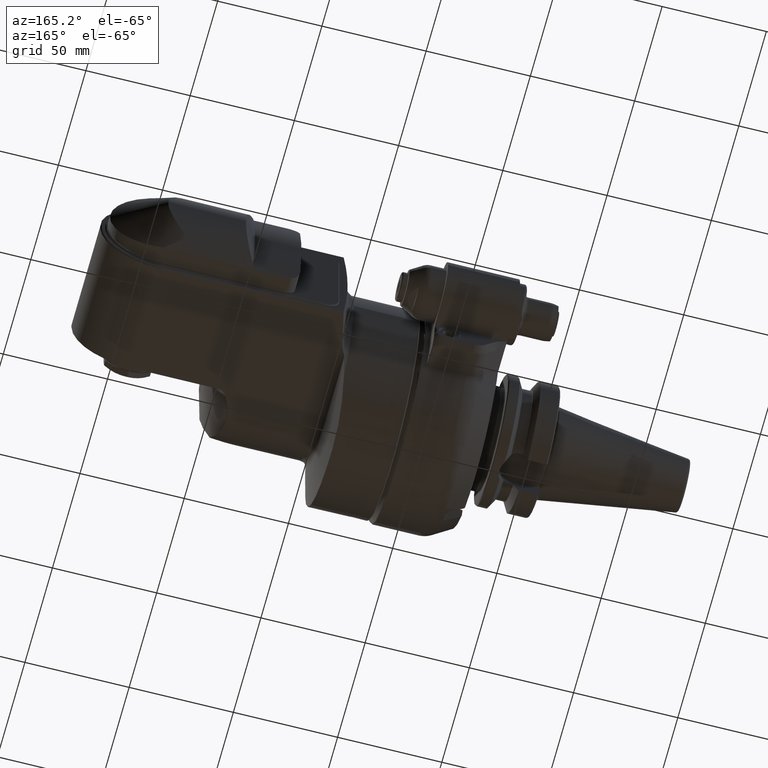
[diagram: clean part render]
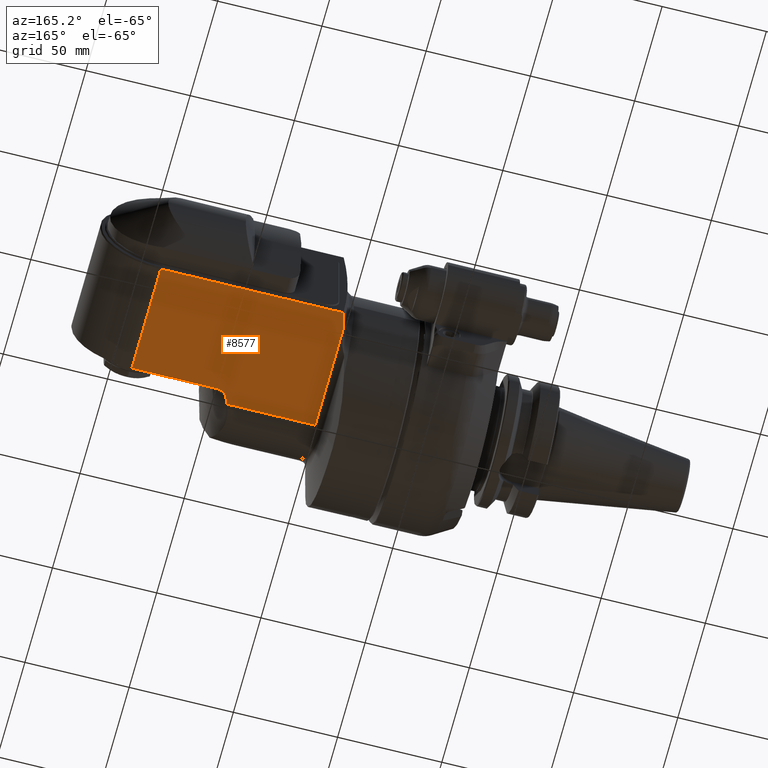
[diagram: same view with one face highlighted and labeled with its STEP entity id]
A machine part, auxiliary view. The second image highlights one B-rep face of the part: STEP entity #8577.
In plain terms, the highlighted planar face has unit normal (0, 0, -1).
Its self-contained STEP definition (entity closure, byte-faithful):
#63=(
BOUNDED_CURVE()
B_SPLINE_CURVE(2,(#15683,#15684,#15685),.UNSPECIFIED.,.F.,.F.)
B_SPLINE_CURVE_WITH_KNOTS((3,3),(31.6407018756519,33.7809985928051),
 .UNSPECIFIED.)
CURVE()
GEOMETRIC_REPRESENTATION_ITEM()
RATIONAL_B_SPLINE_CURVE((1.16255857113127,1.13492545272159,1.10281010088748))
REPRESENTATION_ITEM('')
);
#66=(
BOUNDED_CURVE()
B_SPLINE_CURVE(2,(#15729,#15730,#15731),.UNSPECIFIED.,.F.,.F.)
B_SPLINE_CURVE_WITH_KNOTS((3,3),(4.82928766938057,5.24556707685051),
 .UNSPECIFIED.)
CURVE()
GEOMETRIC_REPRESENTATION_ITEM()
RATIONAL_B_SPLINE_CURVE((1.03701858118079,1.03682333171529,1.03631936417338))
REPRESENTATION_ITEM('')
);
#168=B_SPLINE_CURVE_WITH_KNOTS('',3,(#15712,#15713,#15714,#15715,#15716,
#15717,#15718,#15719,#15720,#15721,#15722,#15723,#15724,#15725,#15726,#15727),
 .UNSPECIFIED.,.F.,.F.,(4,2,2,2,2,2,2,4),(1.49826923300153,1.53043280711697,
1.61136461859275,1.69229643006853,1.79134783866962,1.8903992472707,2.00104239030733,
2.11168553334395),.UNSPECIFIED.);
#598=LINE('',#15701,#1189);
#601=LINE('',#15706,#1192);
#602=LINE('',#15708,#1193);
#603=LINE('',#15710,#1194);
#604=LINE('',#15732,#1195);
#1189=VECTOR('',#11208,10.);
#1192=VECTOR('',#11213,50.4922418065116);
#1193=VECTOR('',#11214,52.5);
#1194=VECTOR('',#11215,40.4589803375);
#1195=VECTOR('',#11216,42.40269030598);
#1969=FACE_OUTER_BOUND('',#2520,.T.);
#2520=EDGE_LOOP('',(#6678,#6679,#6680,#6681,#6682,#6683,#6684,#6685));
#3779=VERTEX_POINT('',#15602);
#3799=VERTEX_POINT('',#15678);
#3800=VERTEX_POINT('',#15682);
#3803=VERTEX_POINT('',#15700);
#3805=VERTEX_POINT('',#15707);
#3806=VERTEX_POINT('',#15709);
#3807=VERTEX_POINT('',#15711);
#3808=VERTEX_POINT('',#15728);
#4841=EDGE_CURVE('',#3799,#3800,#63,.T.);
#4846=EDGE_CURVE('',#3803,#3799,#598,.T.);
#4849=EDGE_CURVE('',#3800,#3779,#601,.T.);
#4850=EDGE_CURVE('',#3805,#3803,#602,.T.);
#4851=EDGE_CURVE('',#3806,#3805,#603,.T.);
#4852=EDGE_CURVE('',#3807,#3806,#168,.T.);
#4853=EDGE_CURVE('',#3807,#3808,#66,.T.);
#4854=EDGE_CURVE('',#3779,#3808,#604,.T.);
#6678=ORIENTED_EDGE('',*,*,#4849,.F.);
#6679=ORIENTED_EDGE('',*,*,#4841,.F.);
#6680=ORIENTED_EDGE('',*,*,#4846,.F.);
#6681=ORIENTED_EDGE('',*,*,#4850,.F.);
#6682=ORIENTED_EDGE('',*,*,#4851,.F.);
#6683=ORIENTED_EDGE('',*,*,#4852,.F.);
#6684=ORIENTED_EDGE('',*,*,#4853,.T.);
#6685=ORIENTED_EDGE('',*,*,#4854,.F.);
#8227=PLANE('',#9401);
#8577=ADVANCED_FACE('',(#1969),#8227,.T.);
#9401=AXIS2_PLACEMENT_3D('',#15705,#11211,#11212);
#11208=DIRECTION('',(-1.,0.,0.));
#11211=DIRECTION('center_axis',(0.,0.,-1.));
#11212=DIRECTION('ref_axis',(0.,1.,0.));
#11213=DIRECTION('',(3.98864109842587E-7,-0.999999999999368,-1.05111995125497E-6));
#11214=DIRECTION('',(0.,1.,0.));
#11215=DIRECTION('',(1.,0.,0.));
#11216=DIRECTION('',(0.999999999999999,-1.247353217578E-8,3.210927516568E-8));
#15602=CARTESIAN_POINT('',(-88.66025403784,0.,-30.));
#15678=CARTESIAN_POINT('',(-86.6621376001117,59.0000000009117,-29.9999999996263));
#15682=CARTESIAN_POINT('',(-88.6602708642723,50.4921914898963,-29.9999516932181));
#15683=CARTESIAN_POINT('Ctrl Pts',(-86.6621376002804,59.000000000952,-30.));
#15684=CARTESIAN_POINT('Ctrl Pts',(-87.7388160616828,54.4921631690506,-30.));
#15685=CARTESIAN_POINT('Ctrl Pts',(-88.6602372876669,50.4921889708177,-30.));
#15700=CARTESIAN_POINT('',(0.999999999998,59.,-30.));
#15701=CARTESIAN_POINT('',(-134.3000012,59.,-30.));
#15705=CARTESIAN_POINT('Origin',(-93.,65.11439776565,-30.));
#15706=CARTESIAN_POINT('',(-88.66027417739,50.49224180648,-29.9999469266));
#15707=CARTESIAN_POINT('',(0.999999999998,6.5,-30.));
#15708=CARTESIAN_POINT('',(0.999999999998,6.5,-30.));
#15709=CARTESIAN_POINT('',(-39.4589803375,6.5,-30.));
#15710=CARTESIAN_POINT('',(-39.4589803375,6.5,-30.));
#15711=CARTESIAN_POINT('',(-44.8540428344694,3.53527614953474,-30.0000000053596));
#15712=CARTESIAN_POINT('Ctrl Pts',(-44.8540428295147,3.53527614759441,-30.));
#15713=CARTESIAN_POINT('Ctrl Pts',(-44.8123974573057,3.64161822527457,-30.));
#15714=CARTESIAN_POINT('Ctrl Pts',(-44.7655773363431,3.74351917789133,-30.));
#15715=CARTESIAN_POINT('Ctrl Pts',(-44.5922500260235,4.07829529141559,-30.));
#15716=CARTESIAN_POINT('Ctrl Pts',(-44.4264723064874,4.32229786159449,-30.));
#15717=CARTESIAN_POINT('Ctrl Pts',(-44.0435369211292,4.76780407145822,-30.));
#15718=CARTESIAN_POINT('Ctrl Pts',(-43.8268543227488,4.96971583580246,-30.));
#15719=CARTESIAN_POINT('Ctrl Pts',(-43.3578282406687,5.34381130191266,-30.));
#15720=CARTESIAN_POINT('Ctrl Pts',(-43.0548954390126,5.54170426895446,-30.));
#15721=CARTESIAN_POINT('Ctrl Pts',(-42.4170058685572,5.87849715763417,-30.));
#15722=CARTESIAN_POINT('Ctrl Pts',(-42.0822325212658,6.01774436719797,-30.));
#15723=CARTESIAN_POINT('Ctrl Pts',(-41.4199135905023,6.24114813823444,-30.));
#15724=CARTESIAN_POINT('Ctrl Pts',(-41.0275628869421,6.34051745639951,-30.));
#15725=CARTESIAN_POINT('Ctrl Pts',(-40.2314994588137,6.4699308390669,-30.));
#15726=CARTESIAN_POINT('Ctrl Pts',(-39.8277908142917,6.5,-30.));
#15727=CARTESIAN_POINT('Ctrl Pts',(-39.4589803375032,6.5,-30.));
#15728=CARTESIAN_POINT('',(-46.2575710964063,-4.81740696832425E-7,-29.9999995461602));
#15729=CARTESIAN_POINT('Ctrl Pts',(-44.8540428295122,3.5352761476018,-30.));
#15730=CARTESIAN_POINT('Ctrl Pts',(-45.5639810941807,1.72243828543157,-30.));
#15731=CARTESIAN_POINT('Ctrl Pts',(-46.257571109723,-4.76378317017967E-7,
-30.));
#15732=CARTESIAN_POINT('',(-88.66025403784,0.,-30.));